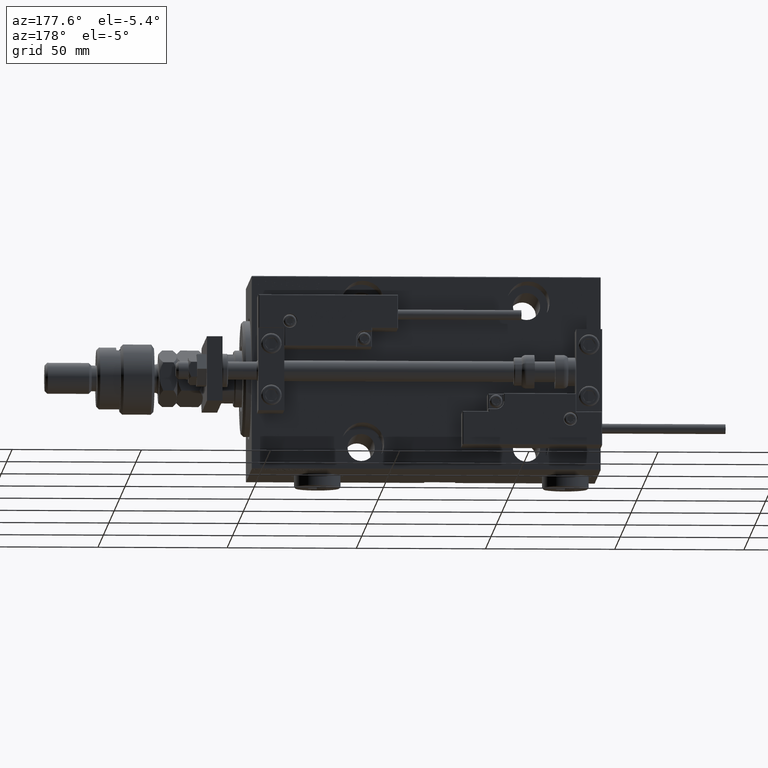
[diagram: clean part render]
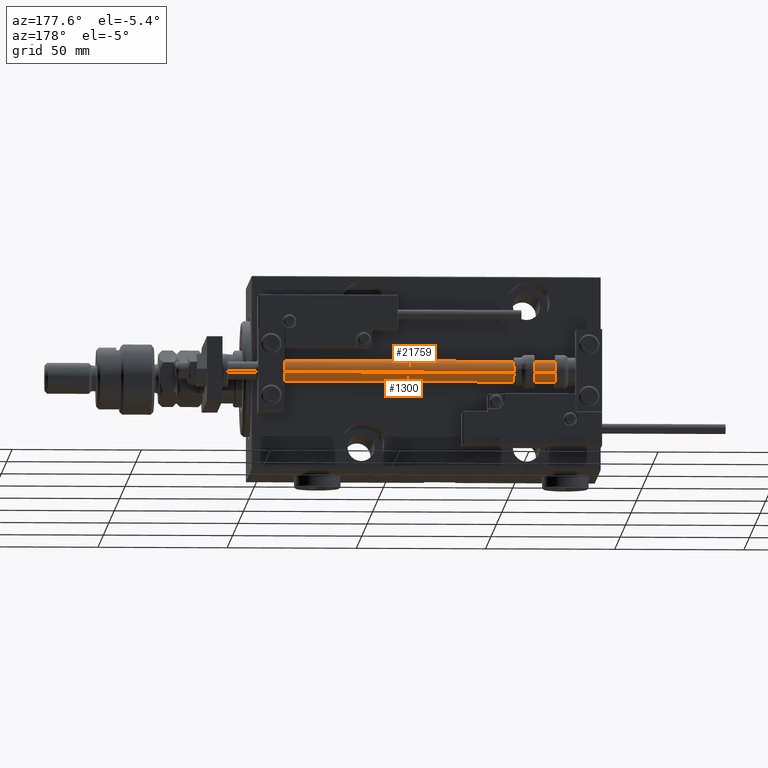
[diagram: same view with one multi-face feature highlighted, each face labeled with its STEP entity id]
A machine part, auxiliary view. The highlighted faces form ONE feature: a constant-radius fillet chain: 2 tangent blend faces with common blend radius 4 mm. The faces share edges in the B-rep.
Their STEP definitions:
[1] entity #1300 (Cylinder):
#136 = VERTEX_POINT ( 'NONE', #44518 ) ;
#1300 = ADVANCED_FACE ( 'NONE', ( #47745 ), #51592, .T. ) ;
#1424 = CARTESIAN_POINT ( 'NONE',  ( -4.000000000000000000, 0.000000000000000000, 135.0000000000000000 ) ) ;
#1450 = DIRECTION ( 'NONE',  ( 1.000000000000000000, 0.000000000000000000, 0.000000000000000000 ) ) ;
#2648 = DIRECTION ( 'NONE',  ( -0.000000000000000000, -0.000000000000000000, -1.000000000000000000 ) ) ;
#3669 = DIRECTION ( 'NONE',  ( -0.000000000000000000, -0.000000000000000000, 1.000000000000000000 ) ) ;
#5593 = AXIS2_PLACEMENT_3D ( 'NONE', #17342, #29658, #1450 ) ;
#8045 = DIRECTION ( 'NONE',  ( 1.000000000000000000, 0.000000000000000000, 0.000000000000000000 ) ) ;
#8966 = VERTEX_POINT ( 'NONE', #30049 ) ;
#9863 = LINE ( 'NONE', #35564, #38775 ) ;
#10450 = DIRECTION ( 'NONE',  ( -0.000000000000000000, -0.000000000000000000, -1.000000000000000000 ) ) ;
#10707 = EDGE_CURVE ( 'NONE', #18420, #8966, #9863, .T. ) ;
#14013 = LINE ( 'NONE', #1424, #15348 ) ;
#14164 = EDGE_CURVE ( 'NONE', #36175, #136, #14013, .T. ) ;
#14261 = AXIS2_PLACEMENT_3D ( 'NONE', #48032, #3669, #8045 ) ;
#15348 = VECTOR ( 'NONE', #10450, 1000.000000000000000 ) ;
#17285 = ORIENTED_EDGE ( 'NONE', *, *, #34673, .T. ) ;
#17342 = CARTESIAN_POINT ( 'NONE',  ( 0.000000000000000000, 0.000000000000000000, 135.0000000000000000 ) ) ;
#18420 = VERTEX_POINT ( 'NONE', #53413 ) ;
#26295 = EDGE_LOOP ( 'NONE', ( #33371, #47571, #17285, #41073 ) ) ;
#27013 = DIRECTION ( 'NONE',  ( -1.000000000000000000, 0.000000000000000000, 0.000000000000000000 ) ) ;
#28374 = CARTESIAN_POINT ( 'NONE',  ( -4.000000000000000000, 0.000000000000000000, 135.0000000000000000 ) ) ;
#29188 = CIRCLE ( 'NONE', #5593, 4.000000000000000000 ) ;
#29658 = DIRECTION ( 'NONE',  ( 0.000000000000000000, 0.000000000000000000, 1.000000000000000000 ) ) ;
#30049 = CARTESIAN_POINT ( 'NONE',  ( 4.000000000000000000, 4.898587196589412829E-16, 2.000000000000029310 ) ) ;
#33371 = ORIENTED_EDGE ( 'NONE', *, *, #36692, .F. ) ;
#34673 = EDGE_CURVE ( 'NONE', #8966, #136, #50902, .T. ) ;
#35564 = CARTESIAN_POINT ( 'NONE',  ( 4.000000000000000000, 4.898587196589412829E-16, 135.0000000000000000 ) ) ;
#36175 = VERTEX_POINT ( 'NONE', #28374 ) ;
#36692 = EDGE_CURVE ( 'NONE', #18420, #36175, #29188, .T. ) ;
#38775 = VECTOR ( 'NONE', #43489, 1000.000000000000000 ) ;
#41073 = ORIENTED_EDGE ( 'NONE', *, *, #14164, .F. ) ;
#43489 = DIRECTION ( 'NONE',  ( -0.000000000000000000, -0.000000000000000000, -1.000000000000000000 ) ) ;
#43944 = CARTESIAN_POINT ( 'NONE',  ( 0.000000000000000000, 0.000000000000000000, 135.0000000000000000 ) ) ;
#44518 = CARTESIAN_POINT ( 'NONE',  ( -4.000000000000000000, 0.000000000000000000, 2.000000000000029310 ) ) ;
#47571 = ORIENTED_EDGE ( 'NONE', *, *, #10707, .T. ) ;
#47745 = FACE_OUTER_BOUND ( 'NONE', #26295, .T. ) ;
#48032 = CARTESIAN_POINT ( 'NONE',  ( 0.000000000000000000, 0.000000000000000000, 2.000000000000029310 ) ) ;
#50902 = CIRCLE ( 'NONE', #14261, 4.000000000000000000 ) ;
#51592 = CYLINDRICAL_SURFACE ( 'NONE', #53366, 4.000000000000000000 ) ;
#53366 = AXIS2_PLACEMENT_3D ( 'NONE', #43944, #2648, #27013 ) ;
#53413 = CARTESIAN_POINT ( 'NONE',  ( 4.000000000000000000, 4.898587196589412829E-16, 135.0000000000000000 ) ) ;
[2] entity #21759 (Cylinder):
#107 = ORIENTED_EDGE ( 'NONE', *, *, #11319, .F. ) ;
#136 = VERTEX_POINT ( 'NONE', #44518 ) ;
#1424 = CARTESIAN_POINT ( 'NONE',  ( -4.000000000000000000, 0.000000000000000000, 135.0000000000000000 ) ) ;
#1935 = CYLINDRICAL_SURFACE ( 'NONE', #52139, 4.000000000000000000 ) ;
#2742 = DIRECTION ( 'NONE',  ( -1.000000000000000000, 0.000000000000000000, 0.000000000000000000 ) ) ;
#4833 = CARTESIAN_POINT ( 'NONE',  ( 0.000000000000000000, 0.000000000000000000, 135.0000000000000000 ) ) ;
#6835 = CIRCLE ( 'NONE', #37381, 4.000000000000000000 ) ;
#8966 = VERTEX_POINT ( 'NONE', #30049 ) ;
#9863 = LINE ( 'NONE', #35564, #38775 ) ;
#10450 = DIRECTION ( 'NONE',  ( -0.000000000000000000, -0.000000000000000000, -1.000000000000000000 ) ) ;
#10707 = EDGE_CURVE ( 'NONE', #18420, #8966, #9863, .T. ) ;
#10866 = CIRCLE ( 'NONE', #42274, 4.000000000000000000 ) ;
#11074 = ORIENTED_EDGE ( 'NONE', *, *, #14164, .T. ) ;
#11319 = EDGE_CURVE ( 'NONE', #36175, #18420, #10866, .T. ) ;
#12771 = DIRECTION ( 'NONE',  ( 0.000000000000000000, 0.000000000000000000, 1.000000000000000000 ) ) ;
#14013 = LINE ( 'NONE', #1424, #15348 ) ;
#14164 = EDGE_CURVE ( 'NONE', #36175, #136, #14013, .T. ) ;
#15348 = VECTOR ( 'NONE', #10450, 1000.000000000000000 ) ;
#18420 = VERTEX_POINT ( 'NONE', #53413 ) ;
#19787 = ORIENTED_EDGE ( 'NONE', *, *, #10707, .F. ) ;
#21759 = ADVANCED_FACE ( 'NONE', ( #32017 ), #1935, .T. ) ;
#23543 = CARTESIAN_POINT ( 'NONE',  ( 0.000000000000000000, 0.000000000000000000, 135.0000000000000000 ) ) ;
#24815 = DIRECTION ( 'NONE',  ( 1.000000000000000000, 0.000000000000000000, 0.000000000000000000 ) ) ;
#27911 = EDGE_LOOP ( 'NONE', ( #19787, #107, #11074, #44369 ) ) ;
#27913 = DIRECTION ( 'NONE',  ( -0.000000000000000000, -0.000000000000000000, -1.000000000000000000 ) ) ;
#28374 = CARTESIAN_POINT ( 'NONE',  ( -4.000000000000000000, 0.000000000000000000, 135.0000000000000000 ) ) ;
#30049 = CARTESIAN_POINT ( 'NONE',  ( 4.000000000000000000, 4.898587196589412829E-16, 2.000000000000029310 ) ) ;
#32017 = FACE_OUTER_BOUND ( 'NONE', #27911, .T. ) ;
#32978 = DIRECTION ( 'NONE',  ( -0.000000000000000000, -0.000000000000000000, 1.000000000000000000 ) ) ;
#35564 = CARTESIAN_POINT ( 'NONE',  ( 4.000000000000000000, 4.898587196589412829E-16, 135.0000000000000000 ) ) ;
#36175 = VERTEX_POINT ( 'NONE', #28374 ) ;
#37085 = DIRECTION ( 'NONE',  ( 1.000000000000000000, 0.000000000000000000, 0.000000000000000000 ) ) ;
#37381 = AXIS2_PLACEMENT_3D ( 'NONE', #49359, #32978, #37085 ) ;
#38775 = VECTOR ( 'NONE', #43489, 1000.000000000000000 ) ;
#42274 = AXIS2_PLACEMENT_3D ( 'NONE', #4833, #12771, #24815 ) ;
#43489 = DIRECTION ( 'NONE',  ( -0.000000000000000000, -0.000000000000000000, -1.000000000000000000 ) ) ;
#44369 = ORIENTED_EDGE ( 'NONE', *, *, #48625, .T. ) ;
#44518 = CARTESIAN_POINT ( 'NONE',  ( -4.000000000000000000, 0.000000000000000000, 2.000000000000029310 ) ) ;
#48625 = EDGE_CURVE ( 'NONE', #136, #8966, #6835, .T. ) ;
#49359 = CARTESIAN_POINT ( 'NONE',  ( 0.000000000000000000, 0.000000000000000000, 2.000000000000029310 ) ) ;
#52139 = AXIS2_PLACEMENT_3D ( 'NONE', #23543, #27913, #2742 ) ;
#53413 = CARTESIAN_POINT ( 'NONE',  ( 4.000000000000000000, 4.898587196589412829E-16, 135.0000000000000000 ) ) ;